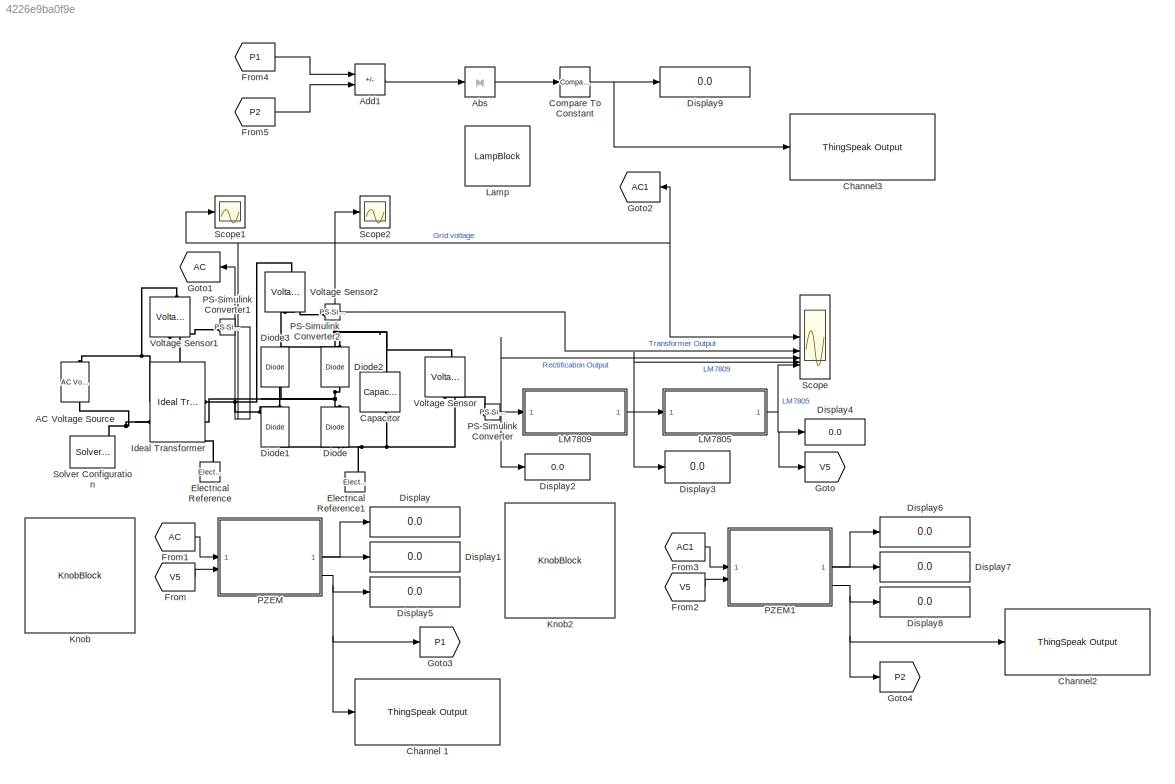
MODEL slx_4226e9ba0f9e
KIND model
CONFIG AbsTol = auto
CONFIG EnableMultiTasking = off
CONFIG FixedStep = auto
CONFIG MaxStep = auto
CONFIG MinStep = auto
CONFIG RelTol = 1e-3
CONFIG SampleTimeConstraint = Unconstrained
CONFIG SolverName = VariableStepAuto
CONFIG StartTime = 0.0
CONFIG StopTime = 2
BLOCK [Reference] AC Voltage Source  REF=fl_lib/Electrical/Electrical Sources/AC Voltage Source
  NameLocation = right
  SourceBlock = fl_lib/Electrical/Electrical Sources/AC Voltage Source
  SourceType = AC Voltage Source
BLOCK [Abs] Abs
  SaturateOnIntegerOverflow = off
BLOCK [Sum] Add1
  IconShape = rectangular
  Inputs = +-
BLOCK [Reference] Capacitor  REF=fl_lib/Electrical/Electrical Elements/Capacitor
  NameLocation = left
  SourceBlock = fl_lib/Electrical/Electrical Elements/Capacitor
  SourceType = Capacitor
BLOCK [Reference] Channel 1  REF=sldrtlib/Internet of Things/ThingSpeak Output
  SourceBlock = sldrtlib/Internet of Things/ThingSpeak Output
  SourceType = Simulink Desktop Real-Time ThingSpeak Output
BLOCK [Reference] Channel2  REF=sldrtlib/Internet of Things/ThingSpeak Output
  SourceBlock = sldrtlib/Internet of Things/ThingSpeak Output
  SourceType = Simulink Desktop Real-Time ThingSpeak Output
BLOCK [Reference] Channel3  REF=sldrtlib/Internet of Things/ThingSpeak Output
  SourceBlock = sldrtlib/Internet of Things/ThingSpeak Output
  SourceType = Simulink Desktop Real-Time ThingSpeak Output
BLOCK [Reference] Compare To Constant  REF=simulink/Logic and Bit
Operations/Compare
To Constant
  SourceBlock = simulink/Logic and Bit\nOperations/Compare\nTo Constant
  SourceType = Compare To Constant
BLOCK [Reference] Diode  REF=ee_lib/Semiconductors &
Converters/Diode
  NameLocation = right
  SourceBlock = ee_lib/Semiconductors &\nConverters/Diode
  SourceType = Diode
BLOCK [Reference] Diode1  REF=ee_lib/Semiconductors &
Converters/Diode
  NameLocation = right
  SourceBlock = ee_lib/Semiconductors &\nConverters/Diode
  SourceType = Diode
BLOCK [Reference] Diode2  REF=ee_lib/Semiconductors &
Converters/Diode
  NameLocation = right
  SourceBlock = ee_lib/Semiconductors &\nConverters/Diode
  SourceType = Diode
BLOCK [Reference] Diode3  REF=ee_lib/Semiconductors &
Converters/Diode
  NameLocation = right
  SourceBlock = ee_lib/Semiconductors &\nConverters/Diode
  SourceType = Diode
BLOCK [Display] Display
  Decimation = 1
BLOCK [Display] Display1
  Decimation = 1
BLOCK [Display] Display2
  Decimation = 1
BLOCK [Display] Display3
  Decimation = 1
BLOCK [Display] Display4
  Decimation = 1
BLOCK [Display] Display5
  Decimation = 1
BLOCK [Display] Display6
  Decimation = 1
BLOCK [Display] Display7
  Decimation = 1
BLOCK [Display] Display8
  Decimation = 1
BLOCK [Display] Display9
  Decimation = 1
BLOCK [Reference] Electrical Reference  REF=fl_lib/Electrical/Electrical Elements/Electrical Reference
  NameLocation = right
  SourceBlock = fl_lib/Electrical/Electrical Elements/Electrical Reference
  SourceType = Electrical Reference
BLOCK [Reference] Electrical Reference1  REF=fl_lib/Electrical/Electrical Elements/Electrical Reference
  NameLocation = right
  SourceBlock = fl_lib/Electrical/Electrical Elements/Electrical Reference
  SourceType = Electrical Reference
BLOCK [From] From
  GotoTag = V5
BLOCK [From] From1
  GotoTag = AC
BLOCK [From] From2
  GotoTag = V5
BLOCK [From] From3
  GotoTag = AC1
BLOCK [From] From4
  GotoTag = P1
BLOCK [From] From5
  GotoTag = P2
BLOCK [Goto] Goto
  GotoTag = V5
BLOCK [Goto] Goto1
  GotoTag = AC
BLOCK [Goto] Goto2
  GotoTag = AC1
BLOCK [Goto] Goto3
  GotoTag = P1
BLOCK [Goto] Goto4
  GotoTag = P2
BLOCK [Reference] Ideal Transformer  REF=fl_lib/Electrical/Electrical Elements/Ideal Transformer
  SourceBlock = fl_lib/Electrical/Electrical Elements/Ideal Transformer
  SourceType = Ideal Transformer
BLOCK [KnobBlock] Knob
BLOCK [KnobBlock] Knob2
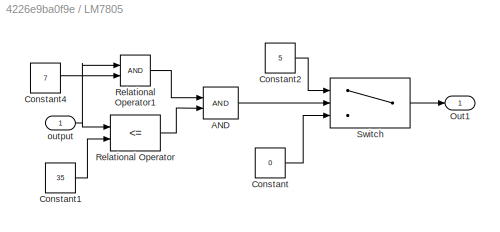
BLOCK [SubSystem] LM7805
BLOCK [Logic] LM7805/AND
  AllPortsSameDT = off
  IconShape = distinctive
  OutDataTypeStr = boolean
BLOCK [Constant] LM7805/Constant
  Value = 0
BLOCK [Constant] LM7805/Constant1
  Value = 35
BLOCK [Constant] LM7805/Constant2
  Value = 5
BLOCK [Constant] LM7805/Constant4
  Value = 7
BLOCK [Outport] LM7805/Out1
BLOCK [RelationalOperator] LM7805/Relational Operator
  InputSameDT = off
  Operator = <=
  OutDataTypeStr = boolean
  RndMeth = Simplest
BLOCK [RelationalOperator] LM7805/Relational Operator1
  InputSameDT = off
  OutDataTypeStr = boolean
  RndMeth = Simplest
BLOCK [Switch] LM7805/Switch
  Criteria = u2 > Threshold
  InputSameDT = off
  SaturateOnIntegerOverflow = off
BLOCK [Inport] LM7805/output
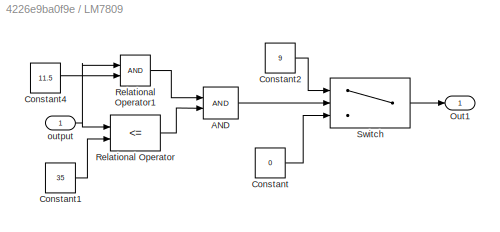
BLOCK [SubSystem] LM7809
BLOCK [Logic] LM7809/AND
  AllPortsSameDT = off
  IconShape = distinctive
  OutDataTypeStr = boolean
BLOCK [Constant] LM7809/Constant
  Value = 0
BLOCK [Constant] LM7809/Constant1
  Value = 35
BLOCK [Constant] LM7809/Constant2
  Value = 9
BLOCK [Constant] LM7809/Constant4
  Value = 11.5
BLOCK [Outport] LM7809/Out1
BLOCK [RelationalOperator] LM7809/Relational Operator
  InputSameDT = off
  Operator = <=
  OutDataTypeStr = boolean
  RndMeth = Simplest
BLOCK [RelationalOperator] LM7809/Relational Operator1
  InputSameDT = off
  OutDataTypeStr = boolean
  RndMeth = Simplest
BLOCK [Switch] LM7809/Switch
  Criteria = u2 > Threshold
  InputSameDT = off
  SaturateOnIntegerOverflow = off
BLOCK [Inport] LM7809/output
BLOCK [LampBlock] Lamp
  LabelPosition = Hide
BLOCK [Reference] PS-Simulink Converter  REF=nesl_utility/PS-Simulink
Converter
  SourceBlock = nesl_utility/PS-Simulink\nConverter
  SourceType = PS-Simulink\nConverter
BLOCK [Reference] PS-Simulink Converter1  REF=nesl_utility/PS-Simulink
Converter
  SourceBlock = nesl_utility/PS-Simulink\nConverter
  SourceType = PS-Simulink\nConverter
BLOCK [Reference] PS-Simulink Converter2  REF=nesl_utility/PS-Simulink
Converter
  SourceBlock = nesl_utility/PS-Simulink\nConverter
  SourceType = PS-Simulink\nConverter
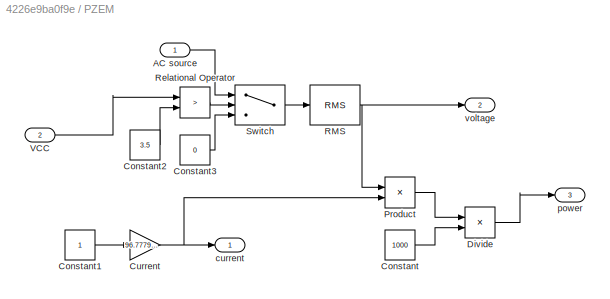
BLOCK [SubSystem] PZEM
BLOCK [Inport] PZEM/AC source
BLOCK [Constant] PZEM/Constant
  Value = 1000
BLOCK [Constant] PZEM/Constant1
BLOCK [Constant] PZEM/Constant2
  Value = 3.5
BLOCK [Constant] PZEM/Constant3
  Value = 0
BLOCK [Gain] PZEM/Current
  Gain = 96.77799543033524
BLOCK [Product] PZEM/Divide
  Inputs = */
BLOCK [Product] PZEM/Product
BLOCK [Reference] PZEM/RMS  REF=spsRMSLib/RMS
  LibrarySourceBlock = sps_lib/Sensors and Measurements/RMS
  SourceBlock = spsRMSLib/RMS
  SourceType = RMS
BLOCK [RelationalOperator] PZEM/Relational Operator
  InputSameDT = off
  Operator = >
  OutDataTypeStr = boolean
  RndMeth = Simplest
BLOCK [Switch] PZEM/Switch
  Criteria = u2 > Threshold
  InputSameDT = off
  SaturateOnIntegerOverflow = off
BLOCK [Inport] PZEM/VCC
  Port = 2
BLOCK [Outport] PZEM/current
BLOCK [Outport] PZEM/power
  Port = 3
BLOCK [Outport] PZEM/voltage
  Port = 2
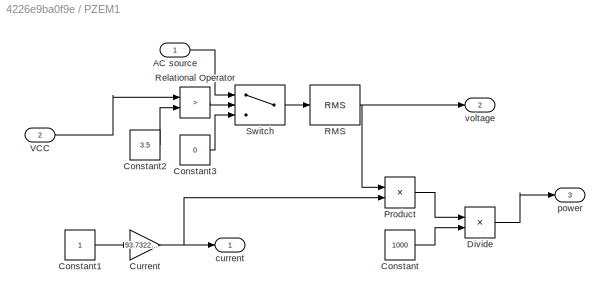
BLOCK [SubSystem] PZEM1
BLOCK [Inport] PZEM1/AC source
BLOCK [Constant] PZEM1/Constant
  Value = 1000
BLOCK [Constant] PZEM1/Constant1
BLOCK [Constant] PZEM1/Constant2
  Value = 3.5
BLOCK [Constant] PZEM1/Constant3
  Value = 0
BLOCK [Gain] PZEM1/Current
  Gain = 93.73220321103906
BLOCK [Product] PZEM1/Divide
  Inputs = */
BLOCK [Product] PZEM1/Product
BLOCK [Reference] PZEM1/RMS  REF=spsRMSLib/RMS
  LibrarySourceBlock = sps_lib/Sensors and Measurements/RMS
  SourceBlock = spsRMSLib/RMS
  SourceType = RMS
BLOCK [RelationalOperator] PZEM1/Relational Operator
  InputSameDT = off
  Operator = >
  OutDataTypeStr = boolean
  RndMeth = Simplest
BLOCK [Switch] PZEM1/Switch
  Criteria = u2 > Threshold
  InputSameDT = off
  SaturateOnIntegerOverflow = off
BLOCK [Inport] PZEM1/VCC
  Port = 2
BLOCK [Outport] PZEM1/current
BLOCK [Outport] PZEM1/power
  Port = 3
BLOCK [Outport] PZEM1/voltage
  Port = 2
BLOCK [Scope] Scope
  Floating = off
  NumInputPorts = 5
  ScopeSpecificationString = Simulink.scopes.TimeScopeBlockCfg('CurrentConfiguration', extmgr.ConfigurationSet(extmgr.Configuration('Core','General UI',true,'DisplayFullSourceName',false,'ShowMainToolbar',true,'FigureColor',[0.129411764705882 0.129411764705882 0.129411764705882]),extmgr.Configuration('Sources','WiredSimulink',true,'DataLogging',false,'DataLoggingVariableName','ScopeData','DataLoggingLimitDataPoints',false,'Da...<+2794ch>
BLOCK [Scope] Scope1
  Floating = off
  NumInputPorts = 1
  ScopeSpecificationString = Simulink.scopes.TimeScopeBlockCfg('CurrentConfiguration', extmgr.ConfigurationSet(extmgr.Configuration('Core','General UI',true,'FigureColor',[0.129411764705882 0.129411764705882 0.129411764705882]),extmgr.Configuration('Sources','WiredSimulink',true,'DataLoggingVariableName','ScopeData1'),extmgr.Configuration('Visuals','Time Domain',true,'SerializedDisplays',{struct('MinYLimReal','-25.3775','MaxY...<+1582ch>
BLOCK [Scope] Scope2
  Floating = off
  NumInputPorts = 1
  ScopeSpecificationString = Simulink.scopes.TimeScopeBlockCfg('CurrentConfiguration', extmgr.ConfigurationSet(extmgr.Configuration('Core','General UI',true,'DisplayFullSourceName',false,'ShowMainToolbar',true,'FigureColor',[0.129411764705882 0.129411764705882 0.129411764705882]),extmgr.Configuration('Sources','WiredSimulink',true,'DataLogging',false,'DataLoggingVariableName','ScopeData2','DataLoggingLimitDataPoints',false,'D...<+2261ch>
BLOCK [Reference] Solver Configuration  REF=nesl_utility/Solver
Configuration
  SourceBlock = nesl_utility/Solver\nConfiguration
  SourceType = Solver\nConfiguration
BLOCK [Reference] Voltage Sensor  REF=fl_lib/Electrical/Electrical Sensors/Voltage Sensor
  NameLocation = right
  SourceBlock = fl_lib/Electrical/Electrical Sensors/Voltage Sensor
  SourceType = Voltage Sensor
BLOCK [Reference] Voltage Sensor1  REF=fl_lib/Electrical/Electrical Sensors/Voltage Sensor
  NameLocation = right
  SourceBlock = fl_lib/Electrical/Electrical Sensors/Voltage Sensor
  SourceType = Voltage Sensor
BLOCK [Reference] Voltage Sensor2  REF=fl_lib/Electrical/Electrical Sensors/Voltage Sensor
  NameLocation = right
  SourceBlock = fl_lib/Electrical/Electrical Sensors/Voltage Sensor
  SourceType = Voltage Sensor
LINE Abs:1 -> Compare To Constant:1
LINE Add1:1 -> Abs:1
NET Compare To Constant:1 -> Channel3:1, Display9:1
LINE From1:1 -> PZEM:1
LINE From2:1 -> PZEM1:2
LINE From3:1 -> PZEM1:1
LINE From4:1 -> Add1:1
LINE From5:1 -> Add1:2
LINE From:1 -> PZEM:2
LINE LM7805/AND:1 -> LM7805/Switch:2
LINE LM7805/Constant1:1 -> LM7805/Relational Operator:2
LINE LM7805/Constant2:1 -> LM7805/Switch:1
LINE LM7805/Constant4:1 -> LM7805/Relational Operator1:2
LINE LM7805/Constant:1 -> LM7805/Switch:3
LINE LM7805/Relational Operator1:1 -> LM7805/AND:1
LINE LM7805/Relational Operator:1 -> LM7805/AND:2
LINE LM7805/Switch:1 -> LM7805/Out1:1
NET LM7805/output:1 -> LM7805/Relational Operator1:1, LM7805/Relational Operator:1
NET LM7805:1 -> Display4:1, Goto:1, Scope:5
LINE LM7809/AND:1 -> LM7809/Switch:2
LINE LM7809/Constant1:1 -> LM7809/Relational Operator:2
LINE LM7809/Constant2:1 -> LM7809/Switch:1
LINE LM7809/Constant4:1 -> LM7809/Relational Operator1:2
LINE LM7809/Constant:1 -> LM7809/Switch:3
LINE LM7809/Relational Operator1:1 -> LM7809/AND:1
LINE LM7809/Relational Operator:1 -> LM7809/AND:2
LINE LM7809/Switch:1 -> LM7809/Out1:1
NET LM7809/output:1 -> LM7809/Relational Operator1:1, LM7809/Relational Operator:1
NET LM7809:1 -> Display3:1, LM7805:1, Scope:4
NET PS-Simulink Converter1:1 -> Goto1:1, Goto2:1, Scope1:1, Scope:1
NET PS-Simulink Converter2:1 -> Scope2:1, Scope:2
NET PS-Simulink Converter:1 -> Display2:1, LM7809:1, Scope:3
LINE PZEM/AC source:1 -> PZEM/Switch:1
LINE PZEM/Constant1:1 -> PZEM/Current:1
LINE PZEM/Constant2:1 -> PZEM/Relational Operator:2
LINE PZEM/Constant3:1 -> PZEM/Switch:3
LINE PZEM/Constant:1 -> PZEM/Divide:2
NET PZEM/Current:1 -> PZEM/Product:2, PZEM/current:1
LINE PZEM/Divide:1 -> PZEM/power:1
LINE PZEM/Product:1 -> PZEM/Divide:1
NET PZEM/RMS:1 -> PZEM/Product:1, PZEM/voltage:1
LINE PZEM/Relational Operator:1 -> PZEM/Switch:2
LINE PZEM/Switch:1 -> PZEM/RMS:1
LINE PZEM/VCC:1 -> PZEM/Relational Operator:1
LINE PZEM1/AC source:1 -> PZEM1/Switch:1
LINE PZEM1/Constant1:1 -> PZEM1/Current:1
LINE PZEM1/Constant2:1 -> PZEM1/Relational Operator:2
LINE PZEM1/Constant3:1 -> PZEM1/Switch:3
LINE PZEM1/Constant:1 -> PZEM1/Divide:2
NET PZEM1/Current:1 -> PZEM1/Product:2, PZEM1/current:1
LINE PZEM1/Divide:1 -> PZEM1/power:1
LINE PZEM1/Product:1 -> PZEM1/Divide:1
NET PZEM1/RMS:1 -> PZEM1/Product:1, PZEM1/voltage:1
LINE PZEM1/Relational Operator:1 -> PZEM1/Switch:2
LINE PZEM1/Switch:1 -> PZEM1/RMS:1
LINE PZEM1/VCC:1 -> PZEM1/Relational Operator:1
LINE PZEM1:1 -> Display6:1
LINE PZEM1:2 -> Display7:1
NET PZEM1:3 -> Channel2:1, Display8:1, Goto4:1
LINE PZEM:1 -> Display:1
LINE PZEM:2 -> Display1:1
NET PZEM:3 -> Channel 1:1, Display5:1, Goto3:1
PNET net1: AC Voltage Source:LConn1 -- Ideal Transformer:LConn1 -- Voltage Sensor1:LConn1
PNET net2: AC Voltage Source:RConn1 -- Electrical Reference:LConn1 -- Ideal Transformer:LConn2 -- Solver Configuration:RConn1 -- Voltage Sensor1:RConn2
PNET net3: Capacitor:LConn1 -- Diode2:RConn1 -- Diode3:RConn1 -- Voltage Sensor:LConn1
PNET net4: Capacitor:RConn1 -- Diode1:LConn1 -- Diode:LConn1 -- Electrical Reference1:LConn1 -- Voltage Sensor:RConn2
PNET net5: Diode1:RConn1 -- Diode3:LConn1 -- Ideal Transformer:RConn1 -- Voltage Sensor2:LConn1
PNET net6: Diode2:LConn1 -- Diode:RConn1 -- Ideal Transformer:RConn2 -- Voltage Sensor2:RConn2
PLINE PS-Simulink Converter1:LConn1 -- Voltage Sensor1:RConn1
PLINE PS-Simulink Converter2:LConn1 -- Voltage Sensor2:RConn1
PLINE PS-Simulink Converter:LConn1 -- Voltage Sensor:RConn1
note: NET lines group one-source signal fan-out (src -> all destinations, sorted); 1:1 wires keep LINE; PNET lines group multi-terminal physical nets as a canonical sorted terminal list (undirected conserving connections); 2-terminal nets keep the pairwise PLINE form
